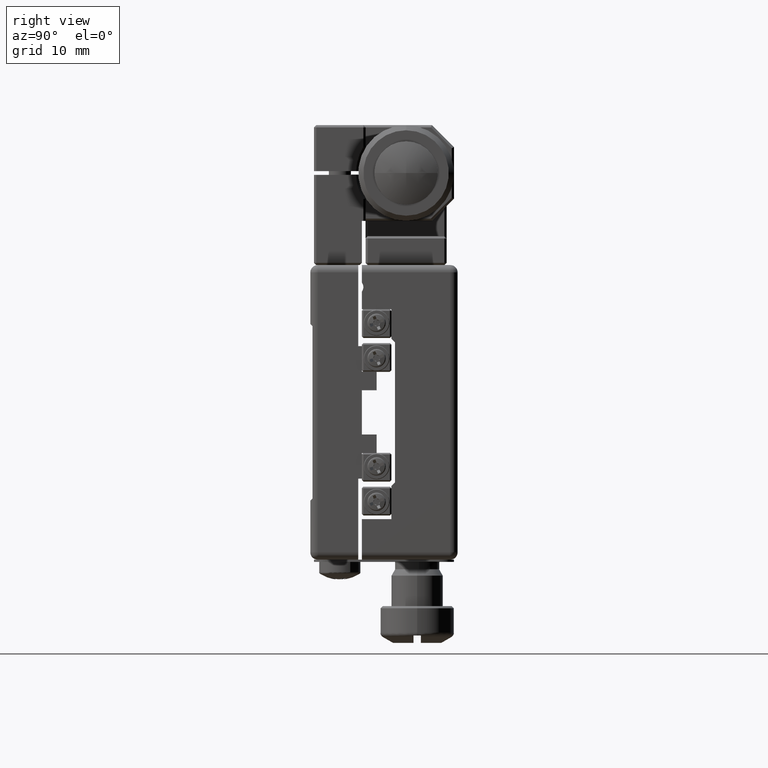
[diagram: clean part render]
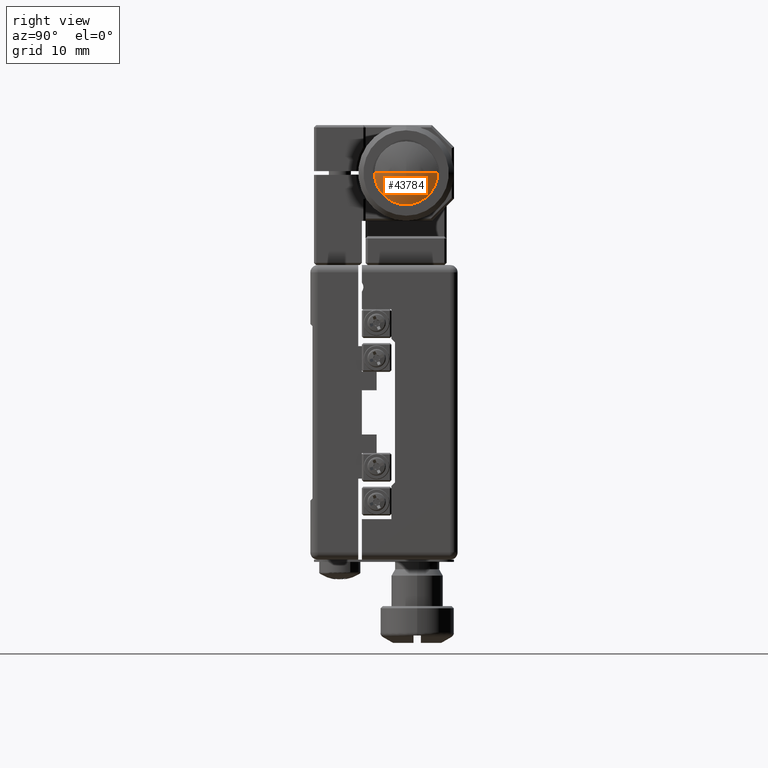
[diagram: same view with one face highlighted and labeled with its STEP entity id]
A machine part, right view. The second image highlights one B-rep face of the part: STEP entity #43784.
In plain terms, the highlighted spherical surface has radius 9.5 mm.
Its self-contained STEP definition (entity closure, byte-faithful):
#687 = CIRCLE ( 'NONE', #25006, 4.300003000000087283 ) ;
#1860 = CIRCLE ( 'NONE', #51383, 9.500000000000001776 ) ;
#3194 = AXIS2_PLACEMENT_3D ( 'NONE', #49144, #26924, #4427 ) ;
#4223 = SPHERICAL_SURFACE ( 'NONE', #36555, 9.500000000000000000 ) ;
#4427 = DIRECTION ( 'NONE',  ( 0.000000000000000000, 0.000000000000000000, -1.000000000000000000 ) ) ;
#5995 = VERTEX_POINT ( 'NONE', #30471 ) ;
#7466 = DIRECTION ( 'NONE',  ( -1.000000000000000000, 0.000000000000000000, -2.465190328815659976E-32 ) ) ;
#9721 = DIRECTION ( 'NONE',  ( 0.000000000000000000, 0.000000000000000000, -1.000000000000000000 ) ) ;
#11896 = ORIENTED_EDGE ( 'NONE', *, *, #12738, .T. ) ;
#12452 = DIRECTION ( 'NONE',  ( 0.000000000000000000, 1.000000000000000000, 0.000000000000000000 ) ) ;
#12738 = EDGE_CURVE ( 'NONE', #52200, #5995, #1860, .T. ) ;
#12772 = CARTESIAN_POINT ( 'NONE',  ( 45.60080206956910587, 10.00826653992194082, 32.50000000000000000 ) ) ;
#18723 = CARTESIAN_POINT ( 'NONE',  ( 45.60080206956910587, 5.708263539921860641, 28.19999699999995002 ) ) ;
#21436 = VERTEX_POINT ( 'NONE', #18723 ) ;
#21683 = DIRECTION ( 'NONE',  ( 0.000000000000000000, -3.995267182682590064E-33, -1.000000000000000000 ) ) ;
#25006 = AXIS2_PLACEMENT_3D ( 'NONE', #53823, #27540, #9721 ) ;
#26633 = CARTESIAN_POINT ( 'NONE',  ( 37.12967615857065340, 5.708263539921860641, 32.50000000000000000 ) ) ;
#26924 = DIRECTION ( 'NONE',  ( 1.000000000000000000, 2.465190328815659976E-32, 0.000000000000000000 ) ) ;
#27540 = DIRECTION ( 'NONE',  ( 1.000000000000000000, 2.465190328815659976E-32, 0.000000000000000000 ) ) ;
#30170 = DIRECTION ( 'NONE',  ( -1.000000000000000000, 0.000000000000000000, 0.000000000000000000 ) ) ;
#30471 = CARTESIAN_POINT ( 'NONE',  ( 45.60080206956910587, 1.408260539921772025, 32.50000000000000000 ) ) ;
#31179 = CIRCLE ( 'NONE', #3194, 4.300003000000087283 ) ;
#36555 = AXIS2_PLACEMENT_3D ( 'NONE', #39865, #7466, #12452 ) ;
#38571 = EDGE_CURVE ( 'NONE', #5995, #21436, #687, .T. ) ;
#38752 = ORIENTED_EDGE ( 'NONE', *, *, #38571, .T. ) ;
#39865 = CARTESIAN_POINT ( 'NONE',  ( 37.12967615857065340, 5.708263539921860641, 32.50000000000000000 ) ) ;
#43775 = ORIENTED_EDGE ( 'NONE', *, *, #54502, .T. ) ;
#43784 = ADVANCED_FACE ( 'NONE', ( #57410 ), #4223, .T. ) ;
#49144 = CARTESIAN_POINT ( 'NONE',  ( 45.60080206956910587, 5.708263539921860641, 32.50000000000000000 ) ) ;
#51383 = AXIS2_PLACEMENT_3D ( 'NONE', #26633, #21683, #30170 ) ;
#52200 = VERTEX_POINT ( 'NONE', #12772 ) ;
#53001 = EDGE_LOOP ( 'NONE', ( #11896, #38752, #43775 ) ) ;
#53823 = CARTESIAN_POINT ( 'NONE',  ( 45.60080206956910587, 5.708263539921860641, 32.50000000000000000 ) ) ;
#54502 = EDGE_CURVE ( 'NONE', #21436, #52200, #31179, .T. ) ;
#57410 = FACE_OUTER_BOUND ( 'NONE', #53001, .T. ) ;